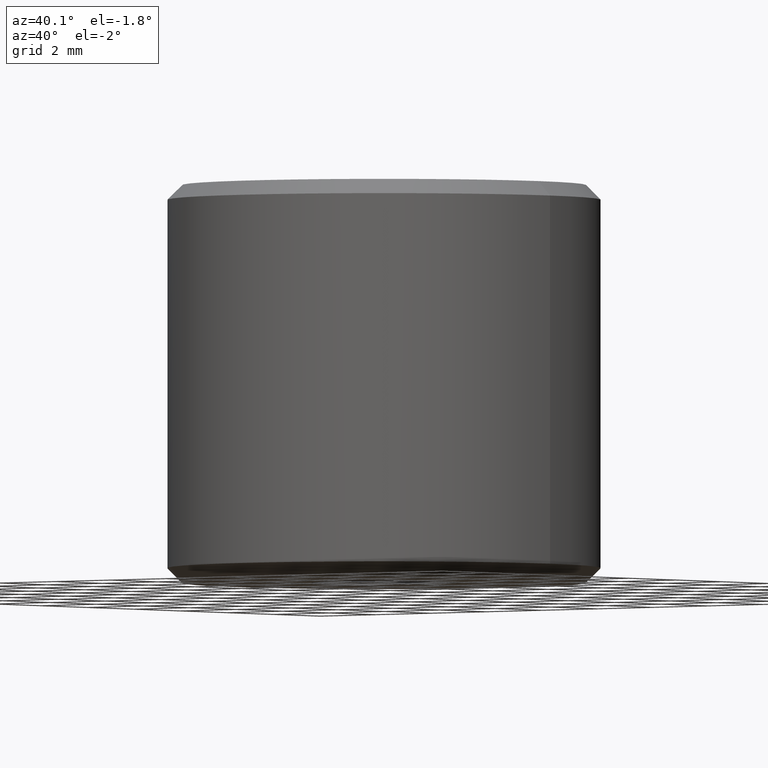
[diagram: clean part render]
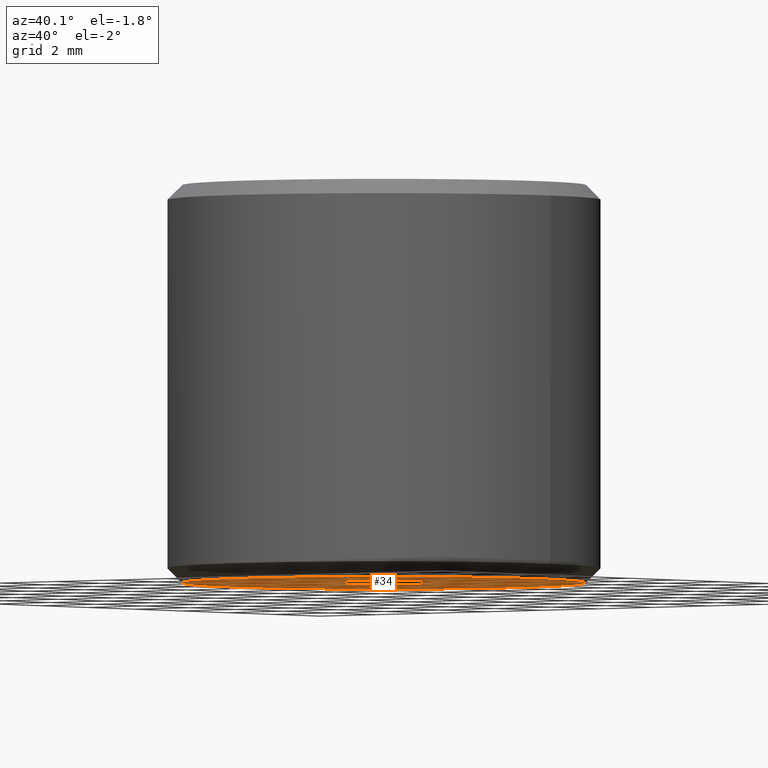
[diagram: same view with one face highlighted and labeled with its STEP entity id]
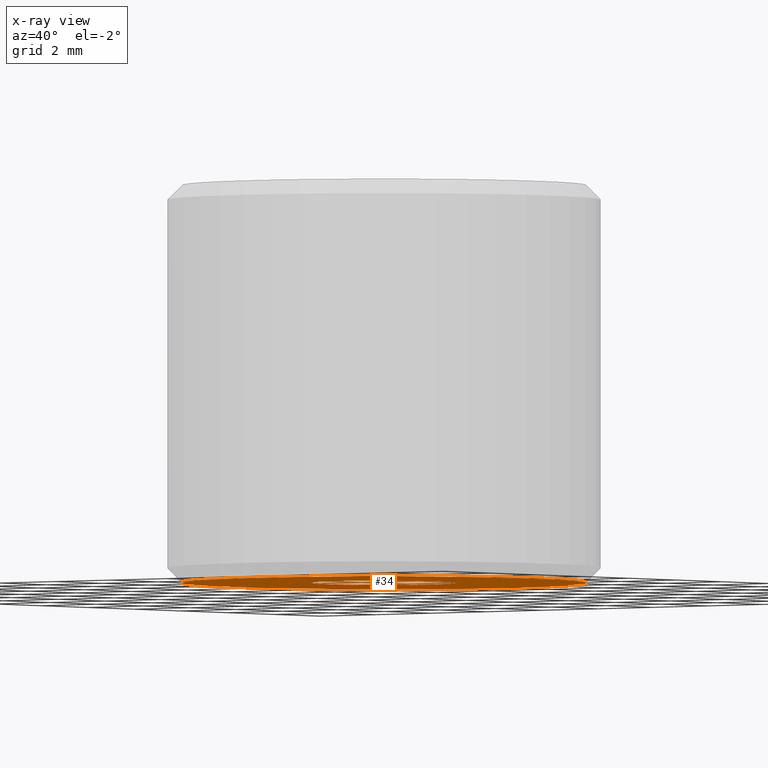
[diagram: x-ray of the same camera — body ghosted, the highlighted face saturated]
A machine part, auxiliary view. The second image highlights one B-rep face of the part: STEP entity #34.
The next image is the same camera in x-ray: the body ghosted, the highlighted face saturated — about 0% of this face is hidden behind the body in this view.
In plain terms, the highlighted planar face has unit normal (0, -0, 1).
Its self-contained STEP definition (entity closure, byte-faithful):
#2 = ORIENTED_EDGE ( 'NONE', *, *, #161, .F. ) ;
#7 = CARTESIAN_POINT ( 'NONE',  ( 0.0000000000000000000, 0.1111111111113758500, 2.255140518769849200E-013 ) ) ;
#15 = AXIS2_PLACEMENT_3D ( 'NONE', #292, #231, #308 ) ;
#20 = VERTEX_POINT ( 'NONE', #235 ) ;
#24 = CARTESIAN_POINT ( 'NONE',  ( 0.0000000000000000000, 0.1111111111113758500, 2.255140518769849200E-013 ) ) ;
#31 = DIRECTION ( 'NONE',  ( -0.0000000000000000000, -0.0000000000000000000, 1.000000000000000000 ) ) ;
#34 = ADVANCED_FACE ( 'NONE', ( #62, #56 ), #45, .F. ) ;
#36 = CARTESIAN_POINT ( 'NONE',  ( 0.0000000000000000000, 0.1111111111113758500, 2.255140518769849200E-013 ) ) ;
#45 = PLANE ( 'NONE',  #165 ) ;
#48 = CARTESIAN_POINT ( 'NONE',  ( -5.592592592592581000, 0.1111111111113765600, 2.255140518769849200E-013 ) ) ;
#56 = FACE_BOUND ( 'NONE', #339, .T. ) ;
#57 = AXIS2_PLACEMENT_3D ( 'NONE', #36, #166, #169 ) ;
#62 = FACE_OUTER_BOUND ( 'NONE', #240, .T. ) ;
#66 = CARTESIAN_POINT ( 'NONE',  ( 1.999999999999958500, 0.1111111111113758500, 2.255140518769849200E-013 ) ) ;
#75 = DIRECTION ( 'NONE',  ( 0.0000000000000000000, -0.0000000000000000000, 1.000000000000000000 ) ) ;
#95 = AXIS2_PLACEMENT_3D ( 'NONE', #7, #31, #140 ) ;
#117 = CARTESIAN_POINT ( 'NONE',  ( 5.592592592592581000, 0.1111111111113758500, 2.255140518769849200E-013 ) ) ;
#125 = CARTESIAN_POINT ( 'NONE',  ( 0.0000000000000000000, 0.0000000000000000000, 2.261565403265023200E-013 ) ) ;
#126 = AXIS2_PLACEMENT_3D ( 'NONE', #24, #134, #159 ) ;
#134 = DIRECTION ( 'NONE',  ( -0.0000000000000000000, -0.0000000000000000000, 1.000000000000000000 ) ) ;
#140 = DIRECTION ( 'NONE',  ( 1.000000000000000000, 0.0000000000000000000, 0.0000000000000000000 ) ) ;
#149 = CIRCLE ( 'NONE', #15, 5.592592592592581000 ) ;
#159 = DIRECTION ( 'NONE',  ( 1.000000000000000000, 0.0000000000000000000, 0.0000000000000000000 ) ) ;
#161 = EDGE_CURVE ( 'NONE', #162, #206, #149, .T. ) ;
#162 = VERTEX_POINT ( 'NONE', #48 ) ;
#165 = AXIS2_PLACEMENT_3D ( 'NONE', #125, #75, #209 ) ;
#166 = DIRECTION ( 'NONE',  ( -0.0000000000000000000, -0.0000000000000000000, 1.000000000000000000 ) ) ;
#169 = DIRECTION ( 'NONE',  ( 1.000000000000000000, 0.0000000000000000000, 0.0000000000000000000 ) ) ;
#174 = EDGE_CURVE ( 'NONE', #275, #20, #252, .T. ) ;
#201 = CIRCLE ( 'NONE', #95, 5.592592592592581000 ) ;
#204 = ORIENTED_EDGE ( 'NONE', *, *, #174, .T. ) ;
#206 = VERTEX_POINT ( 'NONE', #117 ) ;
#209 = DIRECTION ( 'NONE',  ( 1.000000000000000000, 0.0000000000000000000, 0.0000000000000000000 ) ) ;
#219 = ORIENTED_EDGE ( 'NONE', *, *, #251, .F. ) ;
#231 = DIRECTION ( 'NONE',  ( -0.0000000000000000000, -0.0000000000000000000, 1.000000000000000000 ) ) ;
#235 = CARTESIAN_POINT ( 'NONE',  ( -1.999999999999958500, 0.1111111111113761000, 2.255140518769849200E-013 ) ) ;
#240 = EDGE_LOOP ( 'NONE', ( #219, #2 ) ) ;
#251 = EDGE_CURVE ( 'NONE', #206, #162, #201, .T. ) ;
#252 = CIRCLE ( 'NONE', #57, 1.999999999999958500 ) ;
#275 = VERTEX_POINT ( 'NONE', #66 ) ;
#292 = CARTESIAN_POINT ( 'NONE',  ( 0.0000000000000000000, 0.1111111111113758500, 2.255140518769849200E-013 ) ) ;
#308 = DIRECTION ( 'NONE',  ( 1.000000000000000000, 0.0000000000000000000, 0.0000000000000000000 ) ) ;
#320 = CIRCLE ( 'NONE', #126, 1.999999999999958500 ) ;
#323 = EDGE_CURVE ( 'NONE', #20, #275, #320, .T. ) ;
#339 = EDGE_LOOP ( 'NONE', ( #204, #343 ) ) ;
#343 = ORIENTED_EDGE ( 'NONE', *, *, #323, .T. ) ;